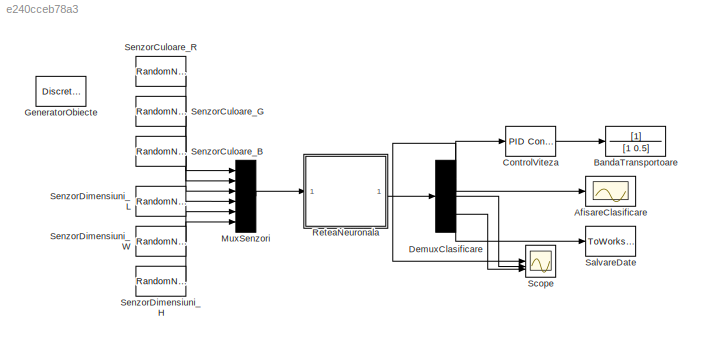
MODEL slx_e240cceb78a3
KIND model
CONFIG AbsTol = auto
CONFIG EnableMultiTasking = off
CONFIG FixedStep = auto
CONFIG MaxStep = 0.01
CONFIG MinStep = auto
CONFIG RelTol = 1e-3
CONFIG SampleTimeConstraint = Unconstrained
CONFIG SolverName = ode45
CONFIG StartTime = 0.0
CONFIG StopTime = 60
BLOCK [Scope] AfisareClasificare
  ActiveDisplayYMaximum = 1.6245350457686565
  ActiveDisplayYMinimum = -0.36488795691519493
  Floating = off
  GraphicalSettings = {"Style":{"BackgroundColor":[0.12941176470588237,0.12941176470588237,0.12941176470588237],"AxesColor":[0.07058823529411765,0.07058823529411765,0.07058823529411765],"LabelsColor":[0.8509803921568627,0.8509803921568627,0.8509803921568627],"PreserveColors":false,"Visible":[true],"LineStyle":["-"],"LineWidth":[1.5],"BarWidth":[0.9],"LineColor":["auto"],"LineFaceAlpha":[1],"LineEdgeAlpha":[1],"Marker":...<+2059ch>
  MultipleDisplayCache = [{"MaxYLimMag":0.81601496171657806,"MaxYLimReal":1.6245350457686565,"MinYLimMag":0.066222355019409332,"MinYLimReal":-0.36488795691519493,"PlotAsMagnitudePhase":false,"ShowGrid":true,"ShowLegend":false,"Title":"%<SignalLabel>","YLabel":""}]
  NumInputPorts = 1
  ScopeFrameLocation = window
  WasSavedAsWebScope = on
  WindowPosition = [882.000000,-97.000000,560.000000,420.000000,]
BLOCK [TransferFcn] BandaTransportoare
  Denominator = [1 0.5]
BLOCK [Reference] ControlViteza  REF=slpidlib/PID Controller
  SourceBlock = slpidlib/PID Controller
  SourceType = PID 1dof
BLOCK [Demux] DemuxClasificare
  Outputs = 3
BLOCK [DiscretePulseGenerator] GeneratorObiecte
  PulseType = Time based
  PulseWidth = 50
BLOCK [Mux] MuxSenzori
  DisplayOption = bar
  Inputs = 6
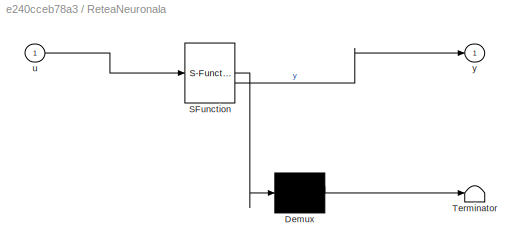
BLOCK [SubSystem] ReteaNeuronala
  ErrorFcn = Stateflow.Translate.translate
  PermitHierarchicalResolution = ExplicitOnly
  SFBlockType = MATLAB Function
  TreatAsAtomicUnit = on
BLOCK [Demux] ReteaNeuronala/ Demux 
  Outputs = 1
BLOCK [S-Function] ReteaNeuronala/ SFunction 
  EnableBusSupport = off
  FunctionName = sf_sfun
  PortCounts = [1 2]
  SFcnIsStateOwnerBlock = off
  SFunctionDeploymentMode = off
  Tag = Stateflow S-Function 2
BLOCK [Terminator] ReteaNeuronala/ Terminator 
BLOCK [Inport] ReteaNeuronala/u
BLOCK [Outport] ReteaNeuronala/y
BLOCK [ToWorkspace] SalvareDate
  FixptAsFi = on
  MaxDataPoints = inf
  SampleTime = -1
  SaveFormat = Timeseries
  VariableName = rezultate_simulare
BLOCK [Scope] Scope
  ActiveDisplayYMaximum = 1.6800836415005935
  ActiveDisplayYMinimum = -0.8870164568392116
  DataLoggingVariableName = ScopeData1
  Floating = off
  GraphicalSettings = {"AxesScalingProperties":{"AlignXAxis":"Center","AlignYAxis":"Center","AutoScaleXAxisLimits":false,"AxesScaling":"Manual","AxesScalingNumUpdates":10,"ExpandOnly":true,"ScaleAxesLimitsAtStop":false,"XAxisDataRange":100,"YAxisDataRange":80},"DisplayProperties":{"ColorOrder":["auto","auto","auto","auto","auto","auto","auto","auto","auto","auto","auto","auto","auto","auto","auto","auto","auto","auto",...<+2354ch>
  MultipleDisplayCache = [{"MaxYLimMag":0.8229410056310642,"MaxYLimReal":1.6800836415005935,"MinYLimMag":0.0038879597890337236,"MinYLimReal":-0.8870164568392116,"PlotAsMagnitudePhase":false,"ShowGrid":true,"ShowLegend":false,"Title":"%<SignalLabel>","YLabel":""}]
  NumInputPorts = 3
  ScopeFrameLocation = window
  WasSavedAsWebScope = on
  WindowPosition = [766.000000,307.000000,560.000000,420.000000,]
BLOCK [RandomNumber] SenzorCuloare_B
  Mean = 128
  SampleTime = 0.1
  Variance = 50
BLOCK [RandomNumber] SenzorCuloare_G
  Mean = 128
  SampleTime = 0.1
  Variance = 50
BLOCK [RandomNumber] SenzorCuloare_R
  Mean = 128
  SampleTime = 0.1
  Variance = 50
BLOCK [RandomNumber] SenzorDimensiuni_H
  Mean = 0.10
  SampleTime = 0.1
  Variance = 0.03
BLOCK [RandomNumber] SenzorDimensiuni_L
  Mean = 0.15
  SampleTime = 0.1
  Variance = 0.05
BLOCK [RandomNumber] SenzorDimensiuni_W
  Mean = 0.15
  SampleTime = 0.1
  Variance = 0.05
LINE ControlViteza:1 -> BandaTransportoare:1
NET DemuxClasificare:1 -> AfisareClasificare:1, ControlViteza:1, SalvareDate:1, Scope:1
LINE DemuxClasificare:2 -> Scope:2
LINE DemuxClasificare:3 -> Scope:3
LINE MuxSenzori:1 -> ReteaNeuronala:1
LINE ReteaNeuronala:1 -> DemuxClasificare:1
LINE SenzorCuloare_B:1 -> MuxSenzori:3
LINE SenzorCuloare_G:1 -> MuxSenzori:2
LINE SenzorCuloare_R:1 -> MuxSenzori:1
LINE SenzorDimensiuni_H:1 -> MuxSenzori:6
LINE SenzorDimensiuni_L:1 -> MuxSenzori:4
LINE SenzorDimensiuni_W:1 -> MuxSenzori:5
note: NET lines group one-source signal fan-out (src -> all destinations, sorted); 1:1 wires keep LINE
CHART ReteaNeuronala states=1 transitions=1
  STATE_LABEL 'eML_blk_kernel()'
  STATE_LABEL 'SCRIPT:\nfunction y = fcn(u)\n% u = [R G B L W H] (senzorii)\n% y = [Plastic; Metal; Sticla] (vector cu 3 ieșiri)\n\n% Normalizare manuală simplă\nR = u(1)/255;\nG = u(2)/255;\nB = u(3)/255;\nL = u(4)/0.3;\nW = u(5)/0.3;\nH = u(6)/0.3;\n\n% Exemplu pseudo-clasificare (logică demo)\nplastic_score = 1.5 - abs(R-0.5)*0.5 - L*0.2 - W*0.2;\nmetal_score   = (R+G+B)/3 + (L+W+H)*0.1;\nsticla_score  = 1 - abs(G-0.6)*0.4 +...<+180ch>'
CHART  states=0 transitions=0
